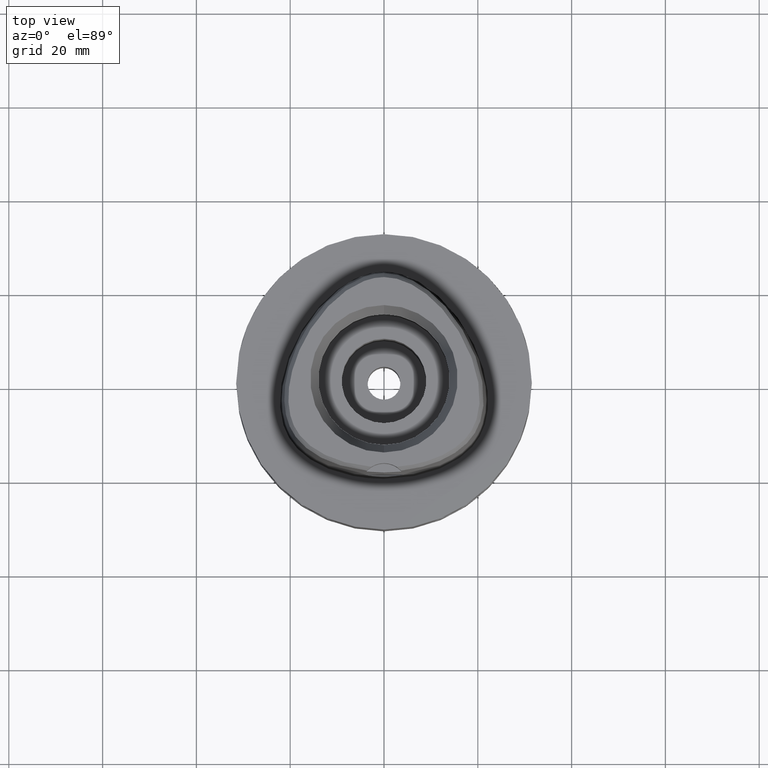
[diagram: clean part render]
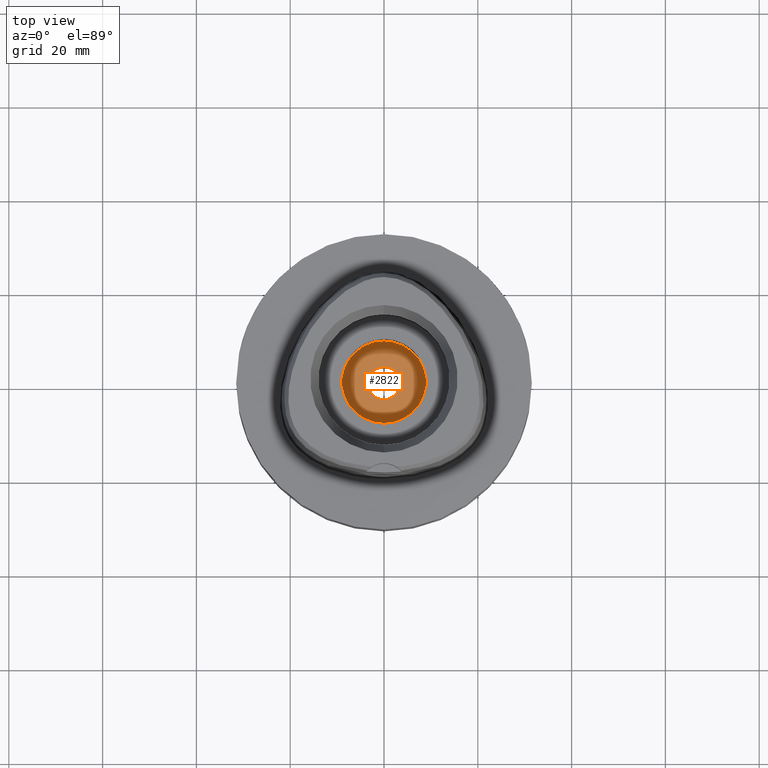
[diagram: same view with one face highlighted and labeled with its STEP entity id]
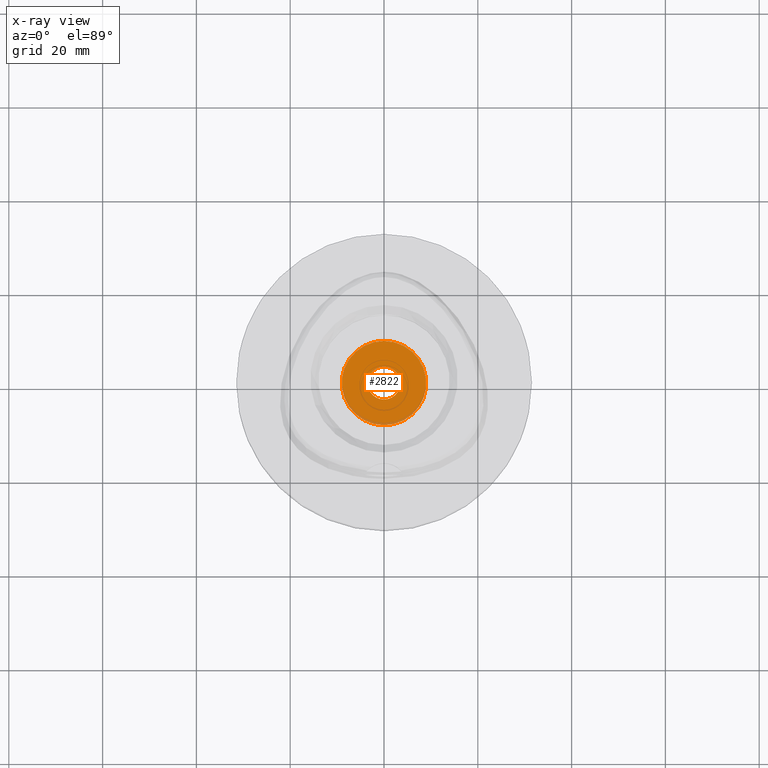
[diagram: x-ray of the same camera — body ghosted, the highlighted face saturated]
A machine part, top view. The second image highlights one B-rep face of the part: STEP entity #2822.
The next image is the same camera in x-ray: the body ghosted, the highlighted face saturated — about 4% of this face is hidden behind the body in this view.
In plain terms, the highlighted planar face has unit normal (0, 0, -1).
Its self-contained STEP definition (entity closure, byte-faithful):
#812=CARTESIAN_POINT('',(0.E0,0.E0,-1.6E1));
#813=DIRECTION('',(0.E0,0.E0,-1.E0));
#814=DIRECTION('',(0.E0,-1.E0,0.E0));
#815=AXIS2_PLACEMENT_3D('',#812,#813,#814);
#820=CARTESIAN_POINT('',(0.E0,0.E0,-1.6E1));
#821=DIRECTION('',(0.E0,0.E0,-1.E0));
#822=DIRECTION('',(0.E0,1.E0,0.E0));
#823=AXIS2_PLACEMENT_3D('',#820,#821,#822);
#828=CARTESIAN_POINT('',(0.E0,1.279755905109E-14,-1.6E1));
#829=DIRECTION('',(0.E0,0.E0,1.E0));
#830=DIRECTION('',(0.E0,-1.E0,0.E0));
#831=AXIS2_PLACEMENT_3D('',#828,#829,#830);
#836=CARTESIAN_POINT('',(0.E0,1.279755905109E-14,-1.6E1));
#837=DIRECTION('',(0.E0,0.E0,1.E0));
#838=DIRECTION('',(0.E0,1.E0,0.E0));
#839=AXIS2_PLACEMENT_3D('',#836,#837,#838);
#1680=CARTESIAN_POINT('',(0.E0,3.5E0,-1.6E1));
#1681=VERTEX_POINT('',#1680);
#1682=CARTESIAN_POINT('',(0.E0,-3.5E0,-1.6E1));
#1683=VERTEX_POINT('',#1682);
#1684=CARTESIAN_POINT('',(0.E0,-9.E0,-1.6E1));
#1685=CARTESIAN_POINT('',(0.E0,9.E0,-1.6E1));
#1686=VERTEX_POINT('',#1684);
#1687=VERTEX_POINT('',#1685);
#2807=CARTESIAN_POINT('',(0.E0,1.028703311284E-14,-1.6E1));
#2808=DIRECTION('',(0.E0,0.E0,-1.E0));
#2809=DIRECTION('',(0.E0,-1.E0,0.E0));
#2810=AXIS2_PLACEMENT_3D('',#2807,#2808,#2809);
#2811=PLANE('',#2810);
#2813=ORIENTED_EDGE('',*,*,#2812,.T.);
#2815=ORIENTED_EDGE('',*,*,#2814,.T.);
#2816=EDGE_LOOP('',(#2813,#2815));
#2817=FACE_OUTER_BOUND('',#2816,.F.);
#2818=ORIENTED_EDGE('',*,*,#2800,.T.);
#2819=ORIENTED_EDGE('',*,*,#2789,.T.);
#2820=EDGE_LOOP('',(#2818,#2819));
#2821=FACE_BOUND('',#2820,.F.);
#816=CIRCLE('',#815,9.E0);
#824=CIRCLE('',#823,9.E0);
#832=CIRCLE('',#831,3.5E0);
#840=CIRCLE('',#839,3.5E0);
#2789=EDGE_CURVE('',#1681,#1683,#840,.T.);
#2800=EDGE_CURVE('',#1683,#1681,#832,.T.);
#2812=EDGE_CURVE('',#1686,#1687,#816,.T.);
#2814=EDGE_CURVE('',#1687,#1686,#824,.T.);
#2822=ADVANCED_FACE('',(#2817,#2821),#2811,.F.);